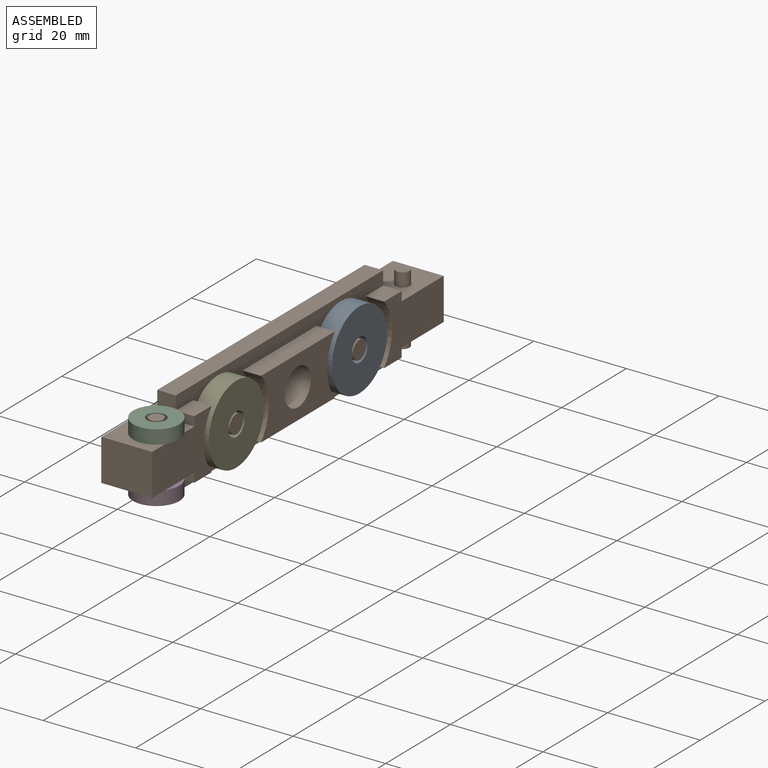
[diagram: assembled view]
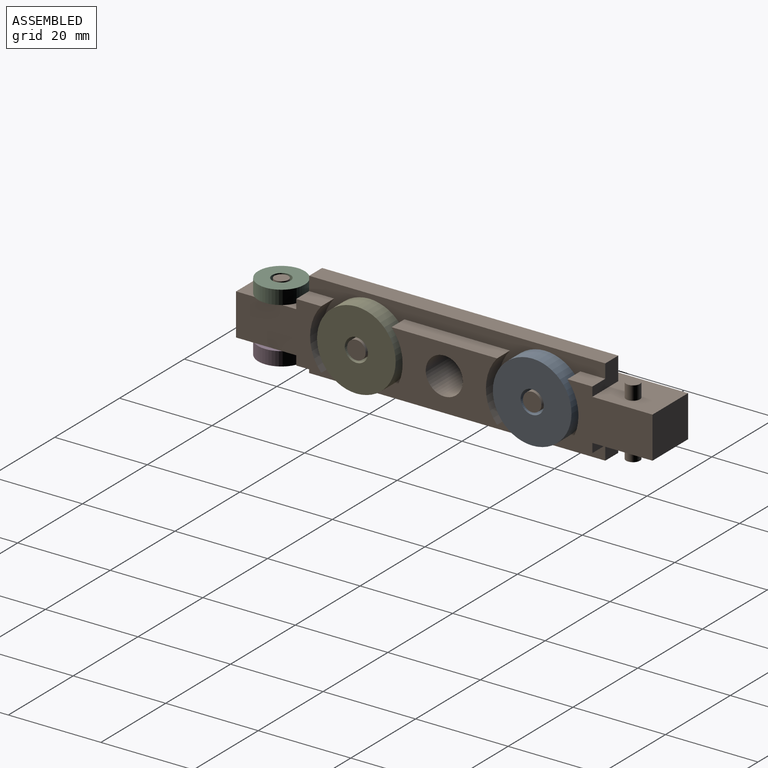
[diagram: assembled view, second angle]
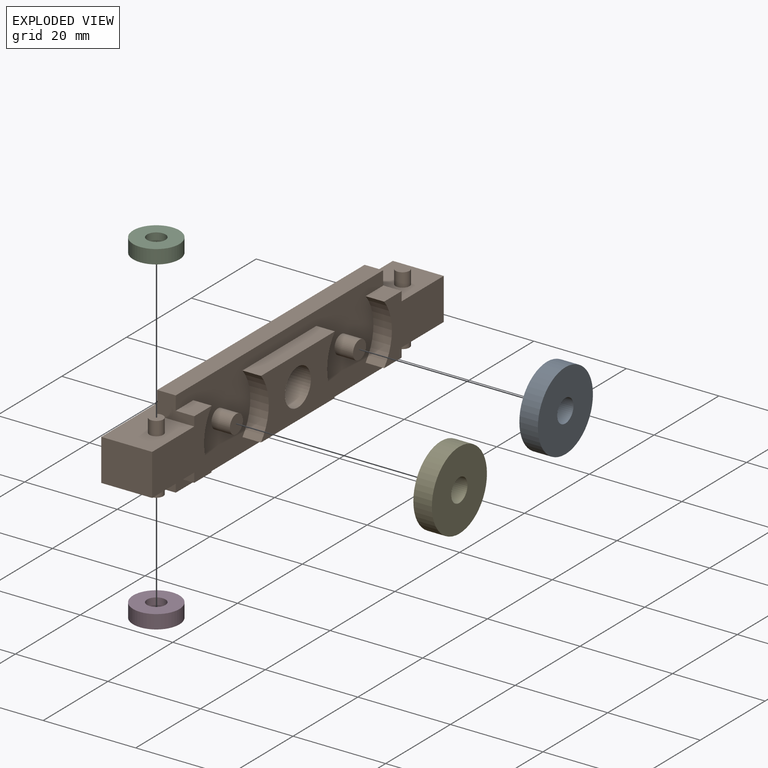
[diagram: exploded view]
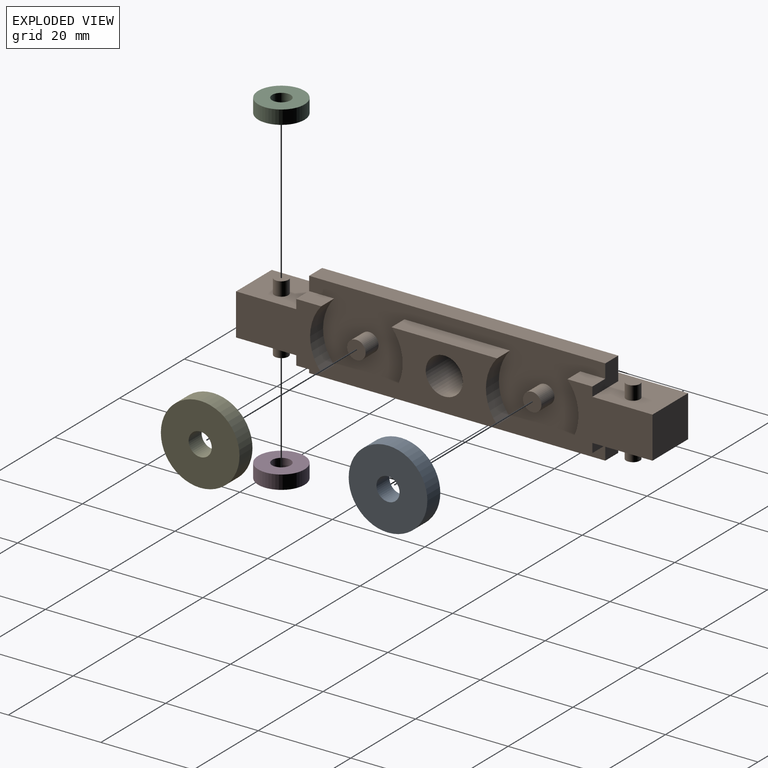
[diagram: exploded view, second angle]
ASSEMBLY  parts=5 mates=4
PART A: 4 faces, bbox 17x17x4 mm
  f0: cylinder r=2.5mm len=5mm, axis (0,0,-1), area 62.8mm2, adj f2,f3
  f1: cylinder r=8.5mm len=17mm, axis (0,0,-1), area 213.6mm2, adj f2,f3
  f2: plane 17x17mm, normal (0,0,1), area 207.3mm2, adj f0,f1
  f3: plane 17x17mm, normal (0,0,-1), area 207.3mm2, adj f0,f1
PART B: 40 faces, bbox 19x90x11 mm
  f0: plane 90x9mm, normal (0,0,1), area 759.7mm2, adj f2,f3,f17,f38,f39
  f1: plane 18.4x13mm, normal (0,0,-1), area 165.8mm2, adj f2,f3,f12,f13,f22,f28,f29,f39
  f2: plane 90x11mm, normal (1,0,0), area 463.9mm2, adj f0,f1,f4,f16,f26,f29,f30,f32
  f3: plane 90x11mm, normal (-1,0,0), area 463.9mm2, adj f0,f1,f4,f10,f27,f28,f34,f36
  f4: plane 18.4x13mm, normal (0,0,-1), area 165.8mm2, adj f2,f3,f6,f9,f18,f26,f27,f38
  f5: plane 22.8x4mm, normal (-1,0,0), area 91.2mm2, adj f7,f14,f19,f21
  f6: plane 5.4x4mm, normal (-1,0,0), area 21.6mm2, adj f4,f14,f18,f27
  f7: plane 22.8x13mm, normal (0,0,-1), area 203.4mm2, adj f5,f8,f17,f19,f21
  f8: plane 22.8x4mm, normal (1,0,0), area 91.2mm2, adj f7,f14,f19,f21
  f9: plane 5.4x4mm, normal (1,0,0), area 21.6mm2, adj f4,f14,f18,f26
  f10: plane 64x5mm, normal (0,0,1), area 320mm2, adj f3,f11,f27,f28
  f11: plane 64x4mm, normal (-1,0,0), area 256mm2, adj f10,f14,f27,f28
  f12: plane 5.4x4mm, normal (-1,0,0), area 21.6mm2, adj f1,f14,f22,f28
  f13: plane 5.4x4mm, normal (1,0,0), area 21.6mm2, adj f1,f14,f22,f29
  f14: plane 64x19mm, normal (0,0,-1), area 839.5mm2, adj f5,f6,f8,f9,f11,f12,f13,f15
  f15: plane 64x4mm, normal (1,0,0), area 256mm2, adj f14,f16,f26,f29
  f16: plane 64x5mm, normal (0,0,1), area 320mm2, adj f2,f15,f26,f29
  f17: cylinder r=4mm len=11mm, axis (0,0,-1), area 276.5mm2, adj f0,f7
  f18: cylinder r=10mm len=13mm, axis (0,0,-1), area 56.6mm2, adj f4,f6,f9,f14
  f19: cylinder r=10mm len=13mm, axis (0,0,-1), area 56.6mm2, adj f5,f7,f8,f14
  f20: cylinder r=2mm len=4mm, axis (0,0,-1), area 50.3mm2, adj f14,f24
  f21: cylinder r=10mm len=13mm, axis (0,0,-1), area 56.6mm2, adj f5,f7,f8,f14
  f22: cylinder r=10mm len=13mm, axis (0,0,-1), area 56.6mm2, adj f1,f12,f13,f14
  f23: cylinder r=2mm len=4mm, axis (0,0,-1), area 50.3mm2, adj f14,f25
  f24: plane 4x4mm, normal (0,0,-1), area 12.6mm2, adj f20
  f25: plane 4x4mm, normal (0,0,-1), area 12.6mm2, adj f23
  f26: plane 8x5mm, normal (0,1,0), area 28mm2, adj f2,f4,f9,f14,f15,f16
  f27: plane 8x5mm, normal (0,1,0), area 28mm2, adj f3,f4,f6,f10,f11,f14
  f28: plane 8x5mm, normal (0,-1,0), area 28mm2, adj f1,f3,f10,f11,f12,f14
  f29: plane 8x5mm, normal (0,-1,0), area 28mm2, adj f1,f2,f13,f14,f15,f16
  f30: cylinder r=1.5mm len=3mm, axis (-1,0,0), area 28.3mm2, adj f2,f31
  f31: plane 3x3mm, normal (1,0,0), area 7.1mm2, adj f30
  f32: cylinder r=1.5mm len=3mm, axis (-1,0,0), area 28.3mm2, adj f2,f33
  f33: plane 3x3mm, normal (1,0,0), area 7.1mm2, adj f32
  f34: cylinder r=1.5mm len=3mm, axis (1,0,0), area 28.3mm2, adj f3,f35
  f35: plane 3x3mm, normal (-1,0,0), area 7.1mm2, adj f34
  f36: cylinder r=1.5mm len=3mm, axis (1,0,0), area 28.3mm2, adj f3,f37
  f37: plane 3x3mm, normal (-1,0,0), area 7.1mm2, adj f36
  f38: plane 11x9mm, normal (0,1,0), area 99mm2, adj f0,f2,f3,f4
  f39: plane 11x9mm, normal (0,-1,0), area 99mm2, adj f0,f1,f2,f3
PART C: 4 faces, bbox 10x10x3 mm
  f0: cylinder r=2mm len=4mm, axis (0,0,-1), area 37.7mm2, adj f2,f3
  f1: cylinder r=5mm len=10mm, axis (0,0,-1), area 94.2mm2, adj f2,f3
  f2: plane 10x10mm, normal (0,0,1), area 66mm2, adj f0,f1
  f3: plane 10x10mm, normal (0,0,-1), area 66mm2, adj f0,f1
PART D: same geometry as C
PART E: same geometry as A
PLACE A rot(axis=(0,-1,0),90deg) t=(-2.61,1.37,-1.38)mm
PLACE B rot(axis=(0,-1,0),90deg) t=(-1.61,32.37,-9.88)mm
PLACE C t=(-6.61,-55.63,3.12)mm
PLACE D t=(-6.61,-55.63,-8.88)mm
PLACE E rot(axis=(0,-1,0),90deg) t=(-2.61,-36.63,-1.38)mm
MATE revolute E.f0 <-> B.f21  axis (1,0,0) through (-4.61,-36.63,-1.38)mm
MATE revolute C.f0 <-> B.f30  axis (0,0,-1) through (-6.61,-55.63,6.12)mm
MATE revolute D.f0 <-> B.f36  axis (0,0,-1) through (-6.61,-55.63,-8.88)mm
MATE revolute A.f0 <-> B.f18  axis (1,0,0) through (-4.61,1.37,-1.38)mm
